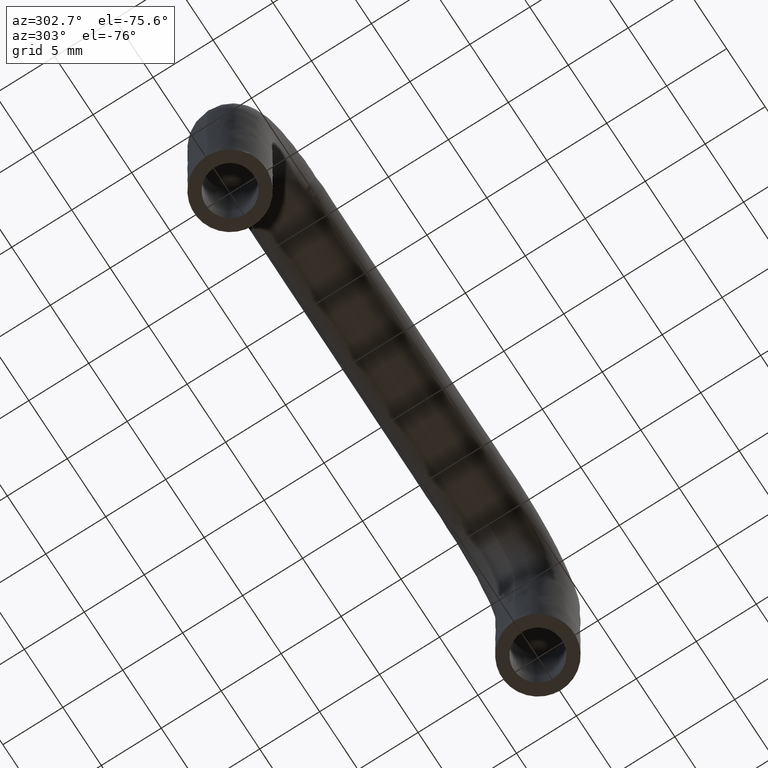
[diagram: clean part render]
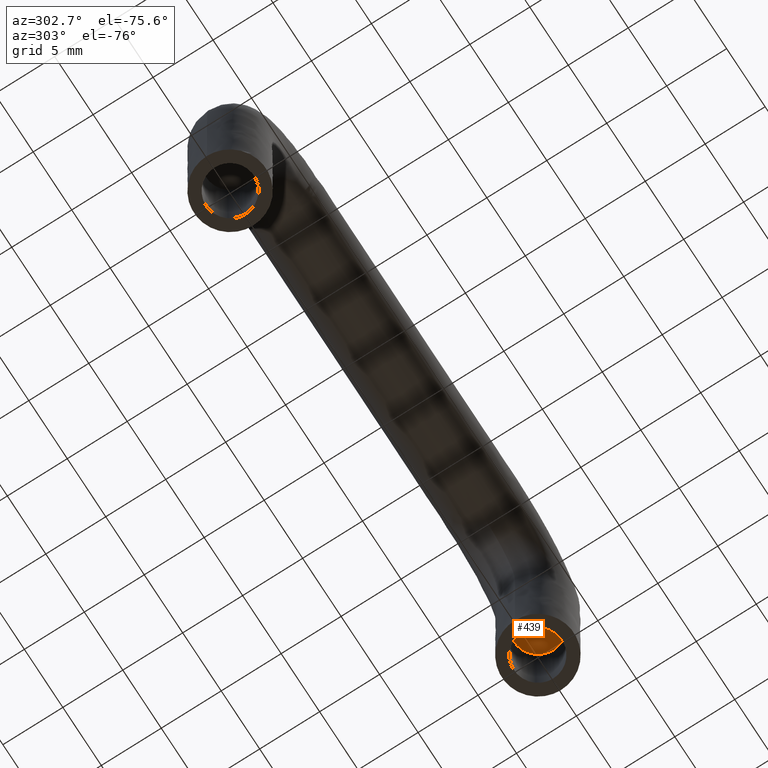
[diagram: same view with one face highlighted and labeled with its STEP entity id]
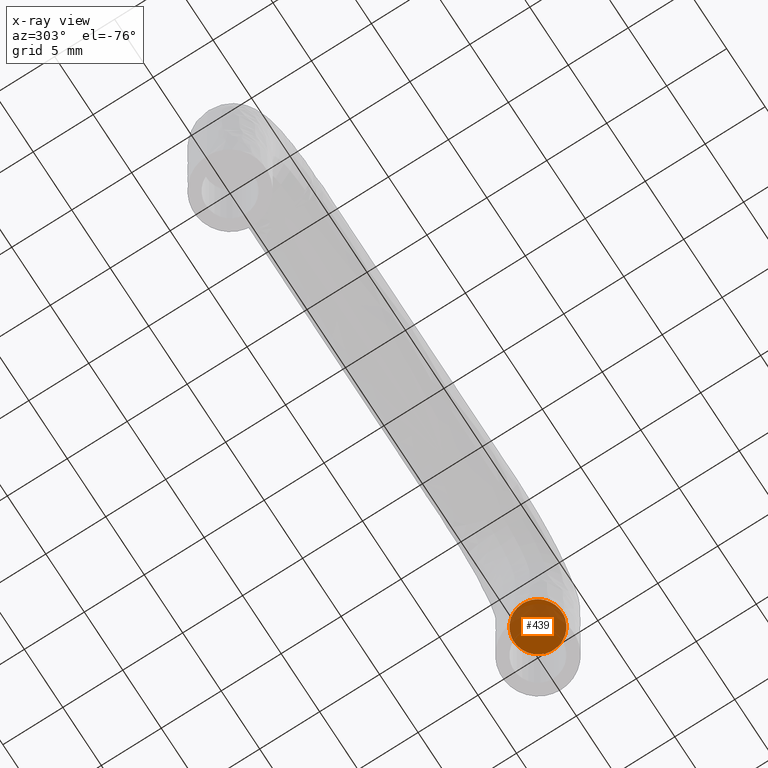
[diagram: x-ray of the same camera — body ghosted, the highlighted face saturated]
A machine part, auxiliary view. The second image highlights one B-rep face of the part: STEP entity #439.
The next image is the same camera in x-ray: the body ghosted, the highlighted face saturated — about 56% of this face is hidden behind the body in this view.
In plain terms, the highlighted face is a freeform B-spline surface patch.
Its self-contained STEP definition (entity closure, byte-faithful):
#252=CARTESIAN_POINT('',(40.236068469343230,-1.986019052723801,8.0));
#253=VERTEX_POINT('',#252);
#254=CARTESIAN_POINT('',(38.0,0.0,8.0));
#255=VERTEX_POINT('',#254);
#256=CARTESIAN_POINT('',(40.236068469343230,-1.986019052723801,8.0));
#257=CARTESIAN_POINT('',(40.118448239333844,-2.000000000000000,8.000000000000002));
#258=CARTESIAN_POINT('',(40.0,-2.0,8.0));
#259=CARTESIAN_POINT('',(38.0,-2.000000000000000,8.0));
#260=CARTESIAN_POINT('',(38.0,0.0,8.0));
#268=(BOUNDED_CURVE()B_SPLINE_CURVE(2,(#256,#257,#258,#259,#260),.UNSPECIFIED.,.F.,.U.)B_SPLINE_CURVE_WITH_KNOTS((3,2,3),(0.229562473510587,0.250000000000000,0.500000000000000),.UNSPECIFIED.)CURVE()GEOMETRIC_REPRESENTATION_ITEM()RATIONAL_B_SPLINE_CURVE((0.956026754177974,0.976055948327723,1.0,0.707106781186548,1.0))REPRESENTATION_ITEM(''));
#269=EDGE_CURVE('',#253,#255,#268,.T.);
#310=CARTESIAN_POINT('',(39.877902920819302,1.996269596836946,8.0));
#311=VERTEX_POINT('',#310);
#317=CARTESIAN_POINT('',(38.0,0.0,8.0));
#318=CARTESIAN_POINT('',(38.0,1.881412133601800,8.0));
#319=CARTESIAN_POINT('',(39.877902920819295,1.996269596836946,8.0));
#327=(BOUNDED_CURVE()B_SPLINE_CURVE(2,(#317,#318,#319),.UNSPECIFIED.,.F.,.U.)B_SPLINE_CURVE_WITH_KNOTS((3,3),(0.500000000000000,0.739332962222782),.UNSPECIFIED.)CURVE()GEOMETRIC_REPRESENTATION_ITEM()RATIONAL_B_SPLINE_CURVE((1.0,0.719603993305643,0.976072041632083))REPRESENTATION_ITEM(''));
#328=EDGE_CURVE('',#255,#311,#327,.T.);
#351=CARTESIAN_POINT('',(42.0,0.0,8.0));
#352=VERTEX_POINT('',#351);
#353=CARTESIAN_POINT('',(42.0,0.0,8.0));
#354=CARTESIAN_POINT('',(42.0,-1.776349051849208,8.0));
#355=CARTESIAN_POINT('',(40.236068469343230,-1.986019052723801,8.0));
#363=(BOUNDED_CURVE()B_SPLINE_CURVE(2,(#353,#354,#355),.UNSPECIFIED.,.F.,.U.)B_SPLINE_CURVE_WITH_KNOTS((3,3),(0.0,0.229562473510587),.UNSPECIFIED.)CURVE()GEOMETRIC_REPRESENTATION_ITEM()RATIONAL_B_SPLINE_CURVE((1.0,0.731050832858825,0.956026754177974))REPRESENTATION_ITEM(''));
#364=EDGE_CURVE('',#352,#253,#363,.T.);
#366=CARTESIAN_POINT('',(39.877902920819295,1.996269596836946,8.0));
#367=CARTESIAN_POINT('',(39.938894473291533,2.000000000000000,8.0));
#368=CARTESIAN_POINT('',(40.0,2.0,8.0));
#369=CARTESIAN_POINT('',(42.000000000000007,2.000000000000000,8.0));
#370=CARTESIAN_POINT('',(42.0,0.0,8.0));
#378=(BOUNDED_CURVE()B_SPLINE_CURVE(2,(#366,#367,#368,#369,#370),.UNSPECIFIED.,.F.,.U.)B_SPLINE_CURVE_WITH_KNOTS((3,2,3),(0.739332962222782,0.750000000000000,1.0),.UNSPECIFIED.)CURVE()GEOMETRIC_REPRESENTATION_ITEM()RATIONAL_B_SPLINE_CURVE((0.976072041632082,0.987502787880904,1.0,0.707106781186548,1.0))REPRESENTATION_ITEM(''));
#379=EDGE_CURVE('',#311,#352,#378,.T.);
#428=CARTESIAN_POINT('',(37.800200007752778,-2.199763729070943,8.0));
#429=CARTESIAN_POINT('',(42.199800099535587,-2.199763729070943,8.0));
#430=CARTESIAN_POINT('',(37.800200007752778,2.199751319383901,8.0));
#431=CARTESIAN_POINT('',(42.199800099535587,2.199751319383901,8.0));
#432=B_SPLINE_SURFACE_WITH_KNOTS('',1,1,((#428,#430),(#429,#431)),.UNSPECIFIED.,.F.,.F.,.U.,(2,2),(2,2),(0.0,4.399600091782808),(0.0,4.399515048454843),.UNSPECIFIED.);
#433=ORIENTED_EDGE('',*,*,#364,.T.);
#434=ORIENTED_EDGE('',*,*,#269,.T.);
#435=ORIENTED_EDGE('',*,*,#328,.T.);
#436=ORIENTED_EDGE('',*,*,#379,.T.);
#437=EDGE_LOOP('',(#433,#434,#435,#436));
#438=FACE_OUTER_BOUND('',#437,.T.);
#439=ADVANCED_FACE('',(#438),#432,.F.);